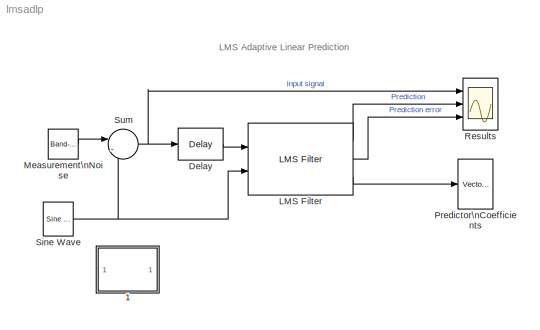
MODEL lmsadlp
KIND model
CONFIG AbsTol = 1e-6
CONFIG FixedStep = auto
CONFIG MaxStep = auto
CONFIG MinStep = auto
CONFIG RelTol = 1e-3
CONFIG Solver = FixedStepDiscrete
CONFIG SolverMode = SingleTasking
CONFIG StartTime = 0.0
CONFIG StopTime = 999999
BLOCK [SubSystem]  1
  MaskDisplay = disp('Info')
  MaskIconFrame = on
  MaskIconOpaque = on
  MaskIconRotate = none
  MaskIconUnits = autoscale
  Ports = []
  TreatAsAtomicUnit = off
BLOCK [Reference] Delay  REF=dspsigops/Delay
  Ports = [1, 1]
  SourceBlock = dspsigops/Delay
  SourceType = Delay
  delay = 1
  dif_ic_for_ch = off
  dif_ic_for_dly = off
  dly_unit = Samples
  ic = 0
  ic_detail = off
  reset_popup = None
BLOCK [Reference] LMS Filter  REF=dspadpt3/LMS Filter
  Adapt = off
  Algo = Normalized LMS
  L = 16
  Ports = [2, 3]
  SourceBlock = dspadpt3/LMS Filter
  SourceType = LMS Filter
  addnparflag = off
  ic = 0
  leakage = 1.0
  mu = 0.5
  resetflag = None
  stepflag = Dialog
  weights = on
BLOCK [Reference] Measurement\nNoise  REF=simulink/Sources/Band-Limited\nWhite Noise
  Cov = [0.1]
  Ports = [0, 1]
  SourceBlock = simulink/Sources/Band-Limited\nWhite Noise
  SourceType = Band-Limited White Noise.
  Ts = 1
  VectorParams1D = on
  seed = [23341]
BLOCK [Reference] Predictor\nCoefficients  REF=dspsnks4/Vector\nScope
  AxisGrid = on
  AxisLegend = off
  AxisProperties = off
  AxisZoom = on
  DisplayProperties = off
  Domain = User-defined
  FigPos = [222 254 343 297]
  FrameNumber = on
  HorizSpan = 1
  InheritXIncr = off
  LineProperties = off
  Memory = off
  OpenScopeAtSimStart = on
  OpenScopeImmediately = off
  Ports = [1]
  ScopeProperties = on
  SourceBlock = dspsnks4/Vector\nScope
  SourceType = Vector Scope
  XIncr = 1
  XLabel = Samples
  XRange = [0...Fs/2]
  XUnits = Hertz
  YLabel = Amplitude
  YMax = 0.25
  YMin = -0.2
  YUnits = dB
BLOCK [Scope] Results
  DataFormat = Array
  NumInputPorts = 3
  Ports = [3]
  SaveName = ScopeData1
  TimeRange = 300
  YMax = 2~2~1
  YMin = -2~-2~-0.4
BLOCK [Reference] Sine Wave  REF=dspsrcs4/Sine Wave
  Amplitude = 1
  CompMethod = Trigonometric fcn
  Frequency = 0.015
  OutComplex = Real
  Phase = 0
  Ports = [0, 1]
  ResetState = Restart at time zero
  SampleMode = Discrete
  SampleTime = 1
  SamplesPerFrame = 1
  SourceBlock = dspsrcs4/Sine Wave
  SourceType = Sine Wave
  TableSize = Speed
  additionalParams = off
  allowOverrides = on
  dataType = double
  fracBitsMode = Best precision
  numFracBits = 14
  udDataType = sfix(16)
  wordLen = 16
BLOCK [Sum] Sum
  IconShape = round
  Inputs = |-+
  Ports = [2, 1]
ANNOTATION (root): LMS Adaptive Linear Prediction
ANNOTATION  1: Adaptive One-Step Linear Prediction\n\nThis demonstrates the ability of the LMS Adaptive FIR\nalgorithm to adaptively compute the linear prediction\ncoefficients for a noisy input signal.\n\nFor more information on LMS filtering, see\nS. Haykin, \"Adaptive Filter Theory\",\n3rd Ed., Prentice Hall, 1996.\n
LINE Delay:1 -> LMS Filter:1
LINE LMS Filter:1 -> Results:2
LINE LMS Filter:2 -> Results:3
LINE LMS Filter:3 -> Predictor\nCoefficients:1
LINE Measurement\nNoise:1 -> Sum:1
NET Sine Wave:1 -> LMS Filter:2, Sum:2
NET Sum:1 -> Delay:1, Results:1
note: NET lines group one-source signal fan-out (src -> all destinations, sorted); 1:1 wires keep LINE
